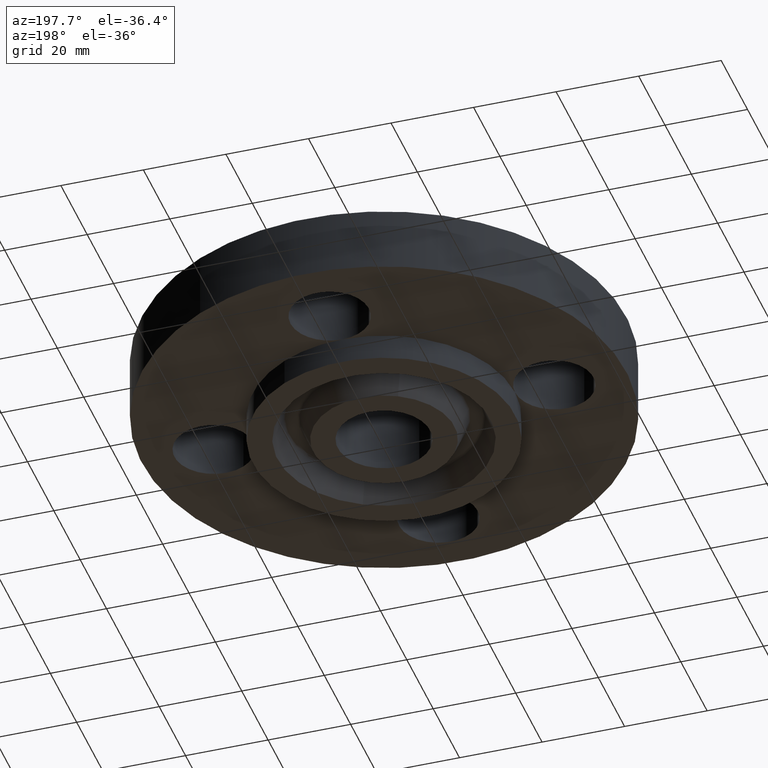
[diagram: clean part render]
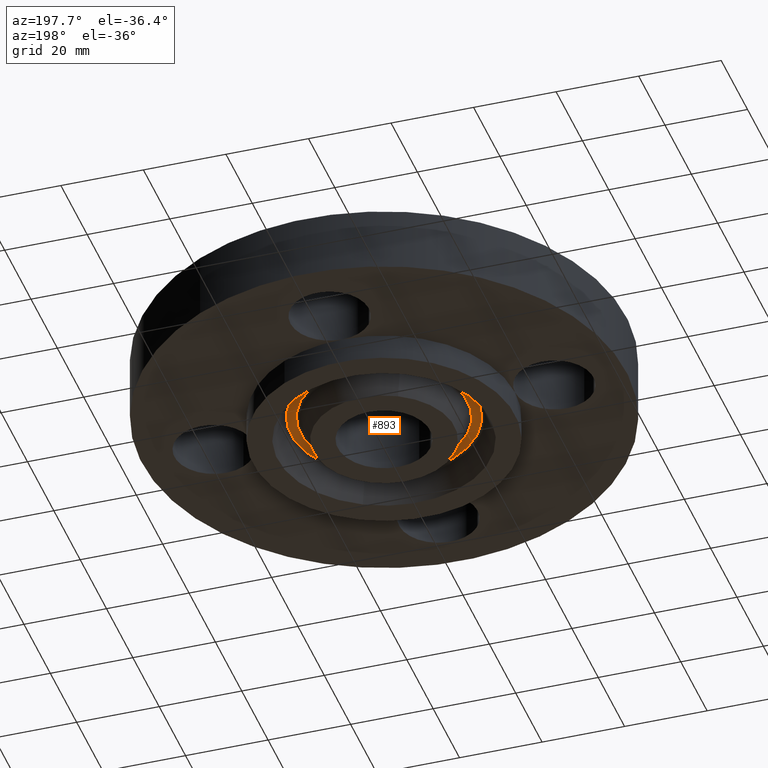
[diagram: same view with one face highlighted and labeled with its STEP entity id]
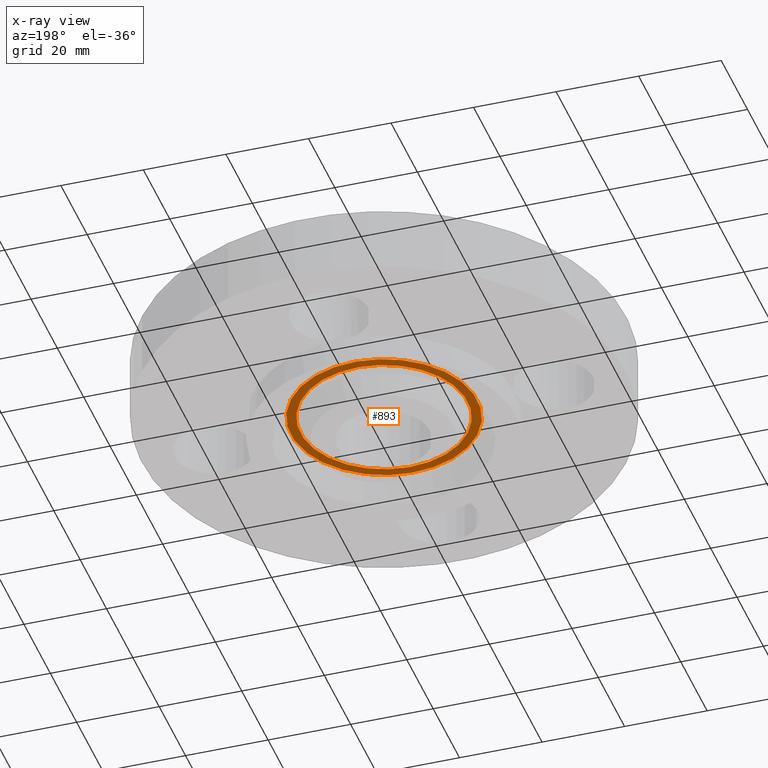
[diagram: x-ray of the same camera — body ghosted, the highlighted face saturated]
A machine part, auxiliary view. The second image highlights one B-rep face of the part: STEP entity #893.
The next image is the same camera in x-ray: the body ghosted, the highlighted face saturated — about 0% of this face is hidden behind the body in this view.
In plain terms, the highlighted planar face has unit normal (0, 0, -1).
Its self-contained STEP definition (entity closure, byte-faithful):
#306=AXIS2_PLACEMENT_3D('Plane Axis2P3D',#303,#304,#305) ;
#799=AXIS2_PLACEMENT_3D('Circle Axis2P3D',#797,#798,$) ;
#818=AXIS2_PLACEMENT_3D('Circle Axis2P3D',#816,#817,$) ;
#877=AXIS2_PLACEMENT_3D('Circle Axis2P3D',#875,#876,$) ;
#886=AXIS2_PLACEMENT_3D('Circle Axis2P3D',#884,#885,$) ;
#303=CARTESIAN_POINT('Axis2P3D Location',(0.,1.25000000001,0.)) ;
#794=CARTESIAN_POINT('Vertex',(0.426383260285,-0.780489322696,-3.0596697529E-017)) ;
#797=CARTESIAN_POINT('Axis2P3D Location',(0.,0.,-3.0596697529E-017)) ;
#801=CARTESIAN_POINT('Vertex',(-0.426383260285,0.780489322696,-3.0596697529E-017)) ;
#816=CARTESIAN_POINT('Axis2P3D Location',(0.,0.,-3.0596697529E-017)) ;
#875=CARTESIAN_POINT('Axis2P3D Location',(0.,0.,0.)) ;
#879=CARTESIAN_POINT('Vertex',(0.382887048882,-0.700870041781,3.93386111088E-017)) ;
#881=CARTESIAN_POINT('Vertex',(-0.382887048882,0.700870041781,3.93386111088E-017)) ;
#884=CARTESIAN_POINT('Axis2P3D Location',(0.,0.,0.)) ;
#304=DIRECTION('Axis2P3D Direction',(0.,0.,-0.0393700787402)) ;
#305=DIRECTION('Axis2P3D XDirection',(0.0393700787402,0.,0.)) ;
#798=DIRECTION('Axis2P3D Direction',(0.,0.,0.0393700787402)) ;
#817=DIRECTION('Axis2P3D Direction',(0.,0.,0.0393700787402)) ;
#876=DIRECTION('Axis2P3D Direction',(0.,0.,-0.0393700787402)) ;
#885=DIRECTION('Axis2P3D Direction',(0.,0.,-0.0393700787402)) ;
#872=ORIENTED_EDGE('',*,*,#820,.F.) ;
#873=ORIENTED_EDGE('',*,*,#803,.F.) ;
#890=ORIENTED_EDGE('',*,*,#883,.T.) ;
#891=ORIENTED_EDGE('',*,*,#888,.T.) ;
#892=FACE_BOUND('',#889,.T.) ;
#893=ADVANCED_FACE('PartBody',(#874,#892),#307,.T.) ;
#800=CIRCLE('generated circle',#799,0.889362843554) ;
#819=CIRCLE('generated circle',#818,0.889362843554) ;
#878=CIRCLE('generated circle',#877,0.798637156453) ;
#887=CIRCLE('generated circle',#886,0.798637156453) ;
#803=EDGE_CURVE('',#795,#802,#800,.T.) ;
#820=EDGE_CURVE('',#802,#795,#819,.T.) ;
#883=EDGE_CURVE('',#880,#882,#878,.F.) ;
#888=EDGE_CURVE('',#882,#880,#887,.F.) ;
#871=EDGE_LOOP('',(#872,#873)) ;
#889=EDGE_LOOP('',(#890,#891)) ;
#874=FACE_OUTER_BOUND('',#871,.T.) ;
#307=PLANE('',#306) ;
#795=VERTEX_POINT('',#794) ;
#802=VERTEX_POINT('',#801) ;
#880=VERTEX_POINT('',#879) ;
#882=VERTEX_POINT('',#881) ;